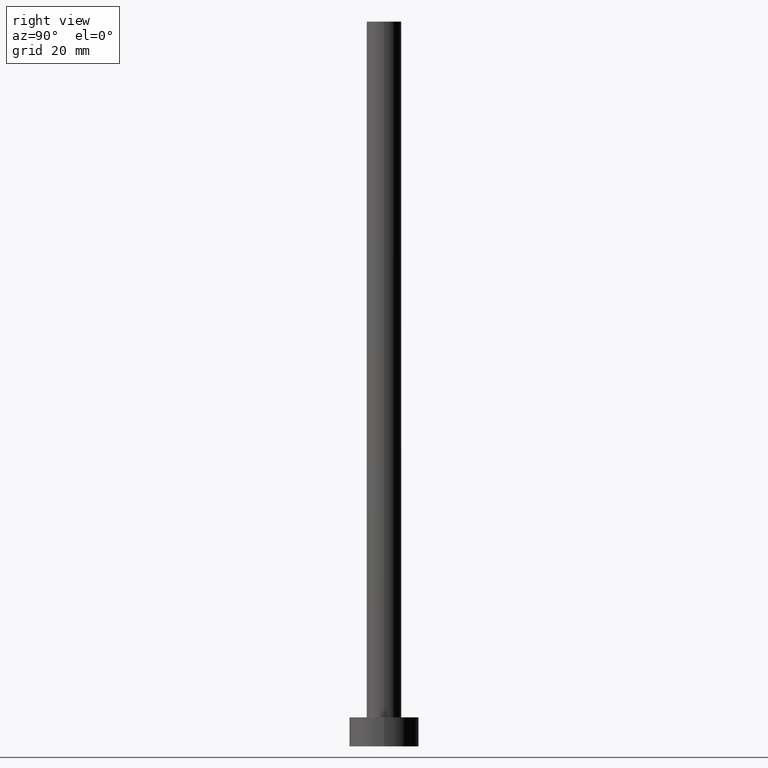
[diagram: clean part render]
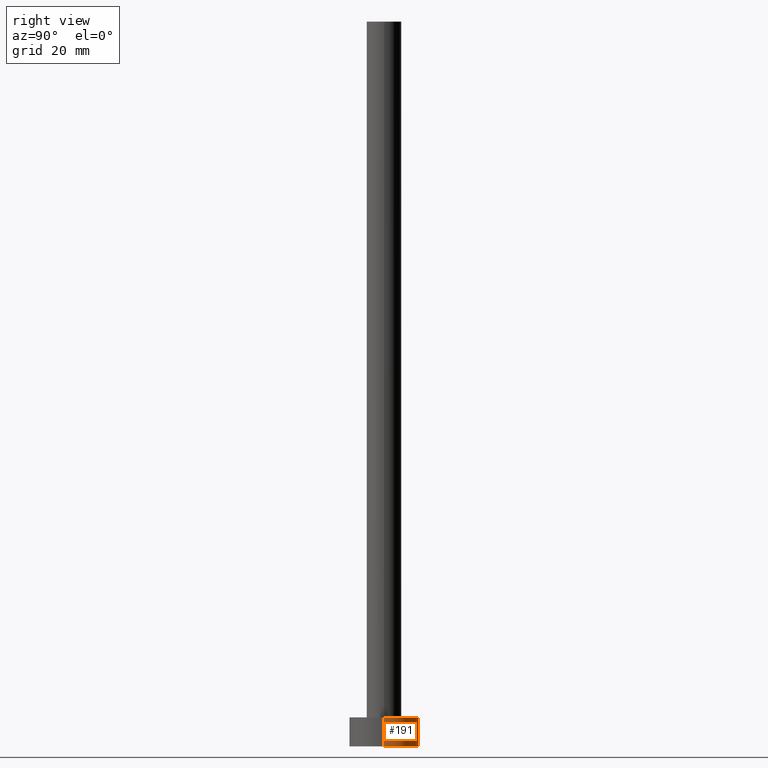
[diagram: same view with one face highlighted and labeled with its STEP entity id]
A machine part, right view. The second image highlights one B-rep face of the part: STEP entity #191.
In plain terms, the highlighted cylindrical surface (edge-blend (fillet) strip) has radius 6 mm, axis along (-0, -0, -1).
Its self-contained STEP definition (entity closure, byte-faithful):
#7 = DIRECTION ( 'NONE',  ( -0.000000000000000000, -0.000000000000000000, -1.000000000000000000 ) ) ;
#13 = VERTEX_POINT ( 'NONE', #75 ) ;
#16 = VERTEX_POINT ( 'NONE', #204 ) ;
#24 = LINE ( 'NONE', #66, #37 ) ;
#25 = CARTESIAN_POINT ( 'NONE',  ( 0.000000000000000000, 0.000000000000000000, 0.000000000000000000 ) ) ;
#26 = DIRECTION ( 'NONE',  ( 0.000000000000000000, 0.000000000000000000, 1.000000000000000000 ) ) ;
#30 = ORIENTED_EDGE ( 'NONE', *, *, #156, .T. ) ;
#37 = VECTOR ( 'NONE', #174, 1000.000000000000000 ) ;
#50 = EDGE_LOOP ( 'NONE', ( #131, #254, #30, #189 ) ) ;
#65 = DIRECTION ( 'NONE',  ( 1.000000000000000000, 0.000000000000000000, 0.000000000000000000 ) ) ;
#66 = CARTESIAN_POINT ( 'NONE',  ( -6.000000000000000888, 0.000000000000000000, 5.000000000000000000 ) ) ;
#75 = CARTESIAN_POINT ( 'NONE',  ( 6.000000000000000888, 7.347880794884120722E-16, 5.000000000000000000 ) ) ;
#82 = DIRECTION ( 'NONE',  ( 0.000000000000000000, 0.000000000000000000, 1.000000000000000000 ) ) ;
#88 = AXIS2_PLACEMENT_3D ( 'NONE', #100, #82, #159 ) ;
#100 = CARTESIAN_POINT ( 'NONE',  ( 0.000000000000000000, 0.000000000000000000, 5.000000000000000000 ) ) ;
#125 = VERTEX_POINT ( 'NONE', #195 ) ;
#126 = VECTOR ( 'NONE', #220, 1000.000000000000000 ) ;
#131 = ORIENTED_EDGE ( 'NONE', *, *, #224, .F. ) ;
#133 = AXIS2_PLACEMENT_3D ( 'NONE', #25, #26, #65 ) ;
#156 = EDGE_CURVE ( 'NONE', #125, #206, #252, .T. ) ;
#159 = DIRECTION ( 'NONE',  ( 1.000000000000000000, 0.000000000000000000, 0.000000000000000000 ) ) ;
#160 = LINE ( 'NONE', #242, #126 ) ;
#170 = EDGE_CURVE ( 'NONE', #16, #206, #24, .T. ) ;
#173 = CARTESIAN_POINT ( 'NONE',  ( -6.000000000000000888, 0.000000000000000000, 0.000000000000000000 ) ) ;
#174 = DIRECTION ( 'NONE',  ( -0.000000000000000000, -0.000000000000000000, -1.000000000000000000 ) ) ;
#176 = FACE_OUTER_BOUND ( 'NONE', #50, .T. ) ;
#177 = DIRECTION ( 'NONE',  ( -1.000000000000000000, 0.000000000000000000, 0.000000000000000000 ) ) ;
#188 = CIRCLE ( 'NONE', #88, 6.000000000000000888 ) ;
#189 = ORIENTED_EDGE ( 'NONE', *, *, #170, .F. ) ;
#191 = ADVANCED_FACE ( 'NONE', ( #176 ), #198, .T. ) ;
#195 = CARTESIAN_POINT ( 'NONE',  ( 6.000000000000000888, 7.347880794884120722E-16, 0.000000000000000000 ) ) ;
#197 = AXIS2_PLACEMENT_3D ( 'NONE', #245, #7, #177 ) ;
#198 = CYLINDRICAL_SURFACE ( 'NONE', #197, 6.000000000000000888 ) ;
#202 = EDGE_CURVE ( 'NONE', #13, #125, #160, .T. ) ;
#204 = CARTESIAN_POINT ( 'NONE',  ( -6.000000000000000888, 0.000000000000000000, 5.000000000000000000 ) ) ;
#206 = VERTEX_POINT ( 'NONE', #173 ) ;
#220 = DIRECTION ( 'NONE',  ( -0.000000000000000000, -0.000000000000000000, -1.000000000000000000 ) ) ;
#224 = EDGE_CURVE ( 'NONE', #13, #16, #188, .T. ) ;
#242 = CARTESIAN_POINT ( 'NONE',  ( 6.000000000000000888, 7.347880794884120722E-16, 5.000000000000000000 ) ) ;
#245 = CARTESIAN_POINT ( 'NONE',  ( 0.000000000000000000, 0.000000000000000000, 5.000000000000000000 ) ) ;
#252 = CIRCLE ( 'NONE', #133, 6.000000000000000888 ) ;
#254 = ORIENTED_EDGE ( 'NONE', *, *, #202, .T. ) ;